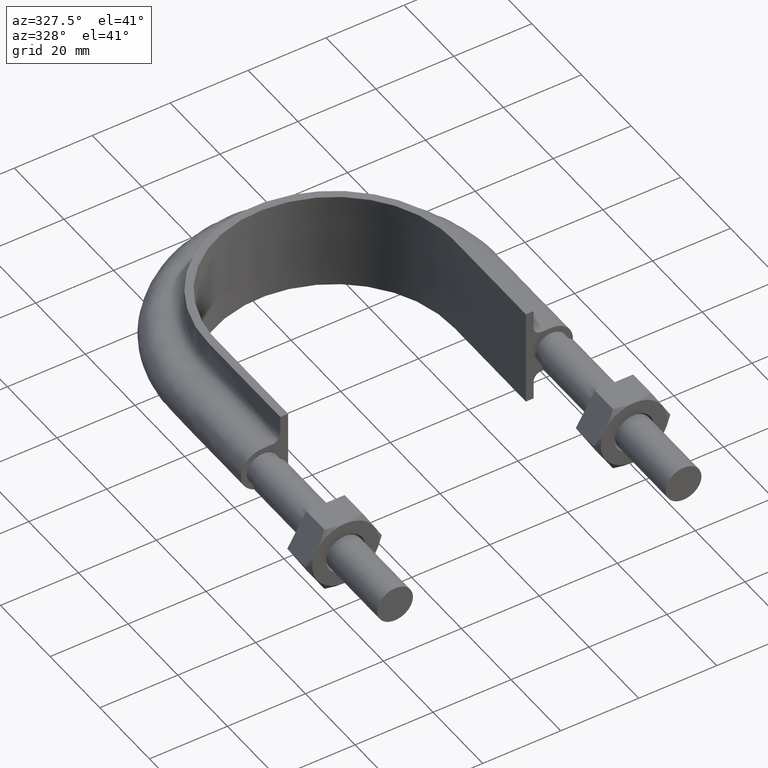
[diagram: clean part render]
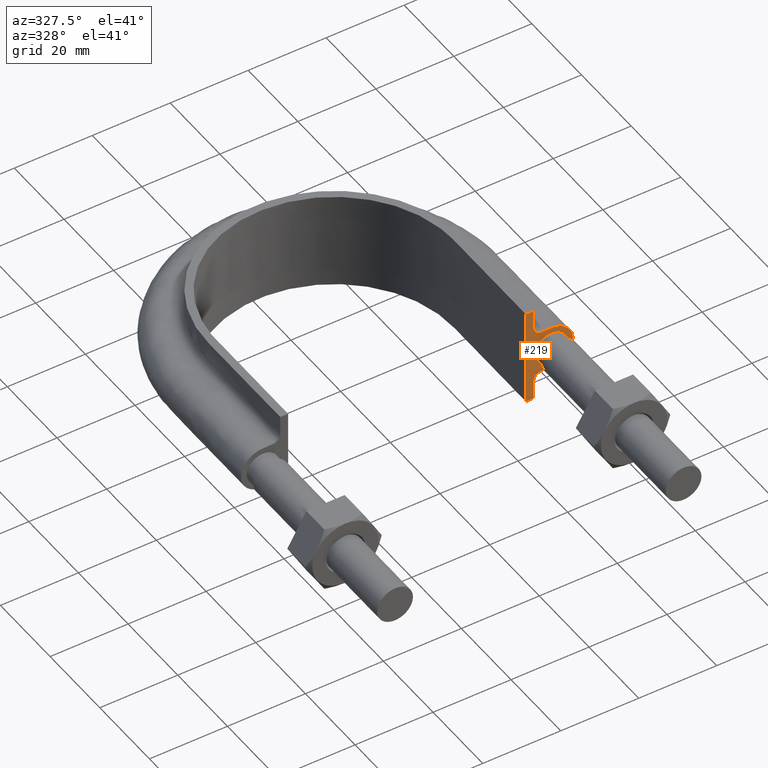
[diagram: same view with one face highlighted and labeled with its STEP entity id]
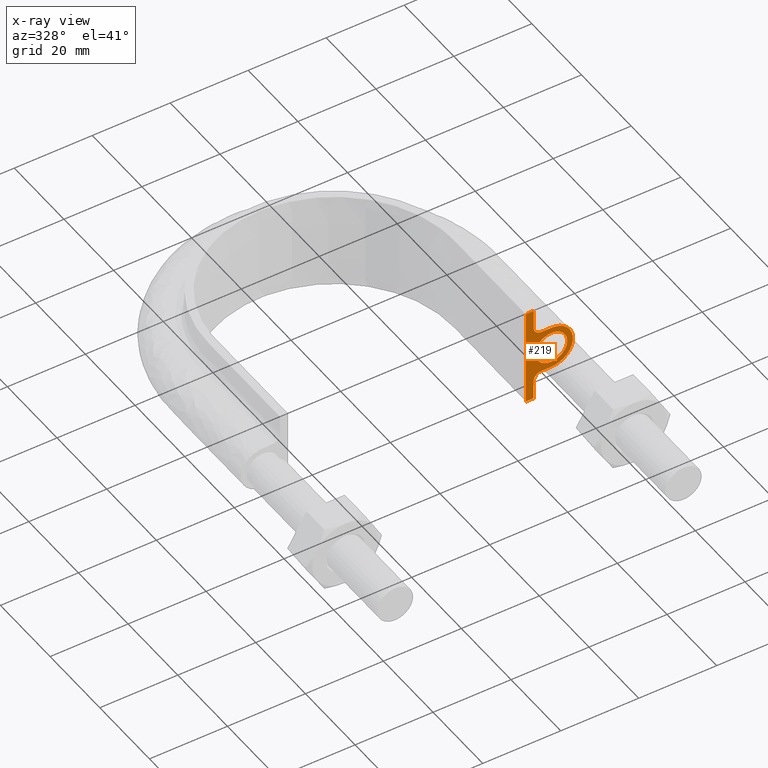
[diagram: x-ray of the same camera — body ghosted, the highlighted face saturated]
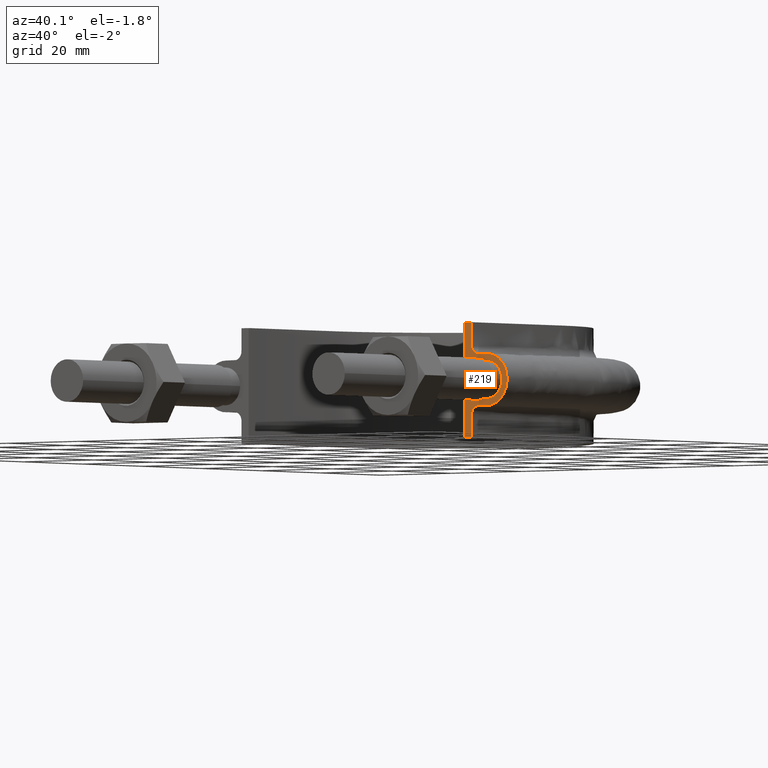
[diagram: same view with one face highlighted and labeled with its STEP entity id]
A machine part, auxiliary view. The second image highlights one B-rep face of the part: STEP entity #219.
The next image is the same camera in x-ray: the body ghosted, the highlighted face saturated — about 0% of this face is hidden behind the body in this view.
A second angle (auxiliary view) of the same face is appended — the face is thin or edge-on in the first view.
In plain terms, the highlighted planar face has unit normal (-0, -1, 0).
Its self-contained STEP definition (entity closure, byte-faithful):
#219 = ADVANCED_FACE( '', ( #296, #297 ), #298, .T. );
#296 = FACE_OUTER_BOUND( '', #468, .T. );
#297 = FACE_BOUND( '', #469, .T. );
#298 = PLANE( '', #470 );
#468 = EDGE_LOOP( '', ( #1465, #1466, #1467, #1468 ) );
#469 = EDGE_LOOP( '', ( #1469 ) );
#470 = AXIS2_PLACEMENT_3D( '', #1470, #1471, #1472 );
#1465 = ORIENTED_EDGE( '', *, *, #2003, .F. );
#1466 = ORIENTED_EDGE( '', *, *, #2004, .T. );
#1467 = ORIENTED_EDGE( '', *, *, #2005, .T. );
#1468 = ORIENTED_EDGE( '', *, *, #2006, .T. );
#1469 = ORIENTED_EDGE( '', *, *, #2007, .F. );
#1470 = CARTESIAN_POINT( '', ( -45.0000000000000, 53.3000000000001, -12.5000000000000 ) );
#1471 = DIRECTION( '', ( -1.22460635382238E-016, -1.00000000000000, 0.000000000000000 ) );
#1472 = DIRECTION( '', ( -1.00000000000000, 1.22460635382238E-016, 0.000000000000000 ) );
#2003 = EDGE_CURVE( '', #2155, #2156, #2157, .T. );
#2004 = EDGE_CURVE( '', #2155, #2158, #2159, .T. );
#2005 = EDGE_CURVE( '', #2158, #2160, #2161, .F. );
#2006 = EDGE_CURVE( '', #2160, #2156, #2162, .F. );
#2007 = EDGE_CURVE( '', #2163, #2163, #2164, .F. );
#2155 = VERTEX_POINT( '', #2405 );
#2156 = VERTEX_POINT( '', #2406 );
#2157 = LINE( '', #2407, #2408 );
#2158 = VERTEX_POINT( '', #2409 );
#2159 = LINE( '', #2410, #2411 );
#2160 = VERTEX_POINT( '', #2412 );
#2161 = LINE( '', #2413, #2414 );
#2162 = B_SPLINE_CURVE_WITH_KNOTS( '', 3, ( #2415, #2416, #2417, #2418, #2419, #2420, #2421, #2422, #2423, #2424, #2425, #2426, #2427, #2428, #2429, #2430, #2431, #2432, #2433, #2434, #2435, #2436, #2437, #2438, #2439, #2440, #2441, #2442, #2443, #2444, #2445 ), .UNSPECIFIED., .F., .F., ( 4, 3, 1, 1, 1, 3, 3, 1, 1, 1, 3, 3, 1, 1, 1, 3, 4 ), ( 0.000000000000000, 0.00240485792065919, 0.00480971584131842, 0.00721457376197760, 0.00961943168263683, 0.0120242896032960, 0.0144291475239552, 0.0168340054446144, 0.0192388633652736, 0.0216437212859329, 0.0240485792065920, 0.0264534371272512, 0.0288582950479105, 0.0312631529685696, 0.0336680108892289, 0.0360728688098881, 0.0384777267305473 ), .UNSPECIFIED. );
#2163 = VERTEX_POINT( '', #2446 );
#2164 = B_SPLINE_CURVE_WITH_KNOTS( '', 3, ( #2447, #2448, #2449, #2450, #2451, #2452, #2453, #2454, #2455, #2456 ), .UNSPECIFIED., .T., .F., ( 4, 1, 1, 1, 1, 1, 1, 4 ), ( 0.000000000000000, 0.00365634574703309, 0.00731269149406618, 0.0109690372410993, 0.0146253829881323, 0.0182817287351654, 0.0219380744821985, 0.0255944202292316 ), .UNSPECIFIED. );
#2405 = CARTESIAN_POINT( '', ( 30.5000000000000, 53.3000000000001, 12.5000000000000 ) );
#2406 = CARTESIAN_POINT( '', ( 32.5000000000000, 53.3000000000001, 12.5000000000000 ) );
#2407 = CARTESIAN_POINT( '', ( 45.0000000000000, 53.3000000000001, 12.5000000000000 ) );
#2408 = VECTOR( '', #3058, 1000.00000000000 );
#2409 = CARTESIAN_POINT( '', ( 30.5000000000000, 53.3000000000001, -12.5000000000000 ) );
#2410 = CARTESIAN_POINT( '', ( 30.5000000000000, 53.3000000000001, 12.5000100000910 ) );
#2411 = VECTOR( '', #3059, 1000.00000000000 );
#2412 = CARTESIAN_POINT( '', ( 32.5000000000000, 53.3000000000001, -12.5000000000000 ) );
#2413 = CARTESIAN_POINT( '', ( -45.0000000000000, 53.3000000000001, -12.5000000000000 ) );
#2414 = VECTOR( '', #3060, 1000.00000000000 );
#2415 = CARTESIAN_POINT( '', ( 32.5000000000000, 53.3000000000001, 12.5000000000000 ) );
#2416 = CARTESIAN_POINT( '', ( 32.5000000000000, 53.3000000000001, 10.8666666666667 ) );
#2417 = CARTESIAN_POINT( '', ( 32.5000000000000, 53.3000000000001, 9.23333333333332 ) );
#2418 = CARTESIAN_POINT( '', ( 32.5000000000000, 53.3000000000001, 7.59999999999998 ) );
#2419 = CARTESIAN_POINT( '', ( 32.5000000000000, 53.3000000000001, 7.33823584172332 ) );
#2420 = CARTESIAN_POINT( '', ( 32.6041362568359, 53.3000000000001, 6.81470752516999 ) );
#2421 = CARTESIAN_POINT( '', ( 33.0489687109389, 53.3000000000001, 6.14896871093886 ) );
#2422 = CARTESIAN_POINT( '', ( 33.7147075251700, 53.3000000000001, 5.70413625683589 ) );
#2423 = CARTESIAN_POINT( '', ( 34.2382358417234, 53.3000000000001, 5.59999999999998 ) );
#2424 = CARTESIAN_POINT( '', ( 34.5000000000000, 53.3000000000001, 5.59999999999998 ) );
#2425 = CARTESIAN_POINT( '', ( 35.3333333333334, 53.3000000000001, 5.60000000000000 ) );
#2426 = CARTESIAN_POINT( '', ( 36.1666666666667, 53.3000000000001, 5.60000000000000 ) );
#2427 = CARTESIAN_POINT( '', ( 37.0000000000000, 53.3000000000001, 5.60000000000000 ) );
#2428 = CARTESIAN_POINT( '', ( 38.4627416997970, 53.3000000000001, 5.60000000000000 ) );
#2429 = CARTESIAN_POINT( '', ( 41.3882250993909, 53.3000000000001, 4.38822509939085 ) );
#2430 = CARTESIAN_POINT( '', ( 43.2058874503046, 53.3000000000001, -1.07693261045861E-015 ) );
#2431 = CARTESIAN_POINT( '', ( 41.3882250993909, 53.3000000000001, -4.38822509939086 ) );
#2432 = CARTESIAN_POINT( '', ( 38.4627416997970, 53.3000000000001, -5.60000000000000 ) );
#2433 = CARTESIAN_POINT( '', ( 37.0000000000000, 53.3000000000001, -5.60000000000000 ) );
#2434 = CARTESIAN_POINT( '', ( 36.1666666666667, 53.3000000000001, -5.60000000000000 ) );
#2435 = CARTESIAN_POINT( '', ( 35.3333333333334, 53.3000000000001, -5.60000000000000 ) );
#2436 = CARTESIAN_POINT( '', ( 34.5000000000000, 53.3000000000001, -5.60000000000000 ) );
#2437 = CARTESIAN_POINT( '', ( 34.2382358417234, 53.3000000000001, -5.60000000000000 ) );
#2438 = CARTESIAN_POINT( '', ( 33.7147075251700, 53.3000000000001, -5.70413625683591 ) );
#2439 = CARTESIAN_POINT( '', ( 33.0489687109389, 53.3000000000001, -6.14896871093888 ) );
#2440 = CARTESIAN_POINT( '', ( 32.6041362568359, 53.3000000000001, -6.81470752517001 ) );
#2441 = CARTESIAN_POINT( '', ( 32.5000000000000, 53.3000000000001, -7.33823584172334 ) );
#2442 = CARTESIAN_POINT( '', ( 32.5000000000000, 53.3000000000001, -7.60000000000000 ) );
#2443 = CARTESIAN_POINT( '', ( 32.5000000000000, 53.3000000000001, -9.23333333333333 ) );
#2444 = CARTESIAN_POINT( '', ( 32.5000000000000, 53.3000000000001, -10.8666666666667 ) );
#2445 = CARTESIAN_POINT( '', ( 32.5000000000000, 53.3000000000001, -12.5000000000000 ) );
#2446 = CARTESIAN_POINT( '', ( 32.9000000000000, 53.3000000000001, 0.000000000000000 ) );
#2447 = CARTESIAN_POINT( '', ( 32.9000000000000, 53.3000000000001, 0.000000000000000 ) );
#2448 = CARTESIAN_POINT( '', ( 32.9000000000000, 53.3000000000001, 1.22184926194408 ) );
#2449 = CARTESIAN_POINT( '', ( 34.0768231851220, 53.3000000000001, 3.66554778583225 ) );
#2450 = CARTESIAN_POINT( '', ( 38.0432697263483, 53.3000000000001, 4.57086332538454 ) );
#2451 = CARTESIAN_POINT( '', ( 41.2241128848103, 53.3000000000001, 2.03422555230246 ) );
#2452 = CARTESIAN_POINT( '', ( 41.2241128848103, 53.3000000000001, -2.03422555230246 ) );
#2453 = CARTESIAN_POINT( '', ( 38.0432697263483, 53.3000000000001, -4.57086332538454 ) );
#2454 = CARTESIAN_POINT( '', ( 34.0768231851220, 53.3000000000001, -3.66554778583225 ) );
#2455 = CARTESIAN_POINT( '', ( 32.9000000000000, 53.3000000000001, -1.22184926194408 ) );
#2456 = CARTESIAN_POINT( '', ( 32.9000000000000, 53.3000000000001, 0.000000000000000 ) );
#3058 = DIRECTION( '', ( 1.00000000000000, -1.22460635382238E-016, 0.000000000000000 ) );
#3059 = DIRECTION( '', ( 0.000000000000000, 0.000000000000000, -1.00000000000000 ) );
#3060 = DIRECTION( '', ( -1.00000000000000, 1.22460635382238E-016, 0.000000000000000 ) );